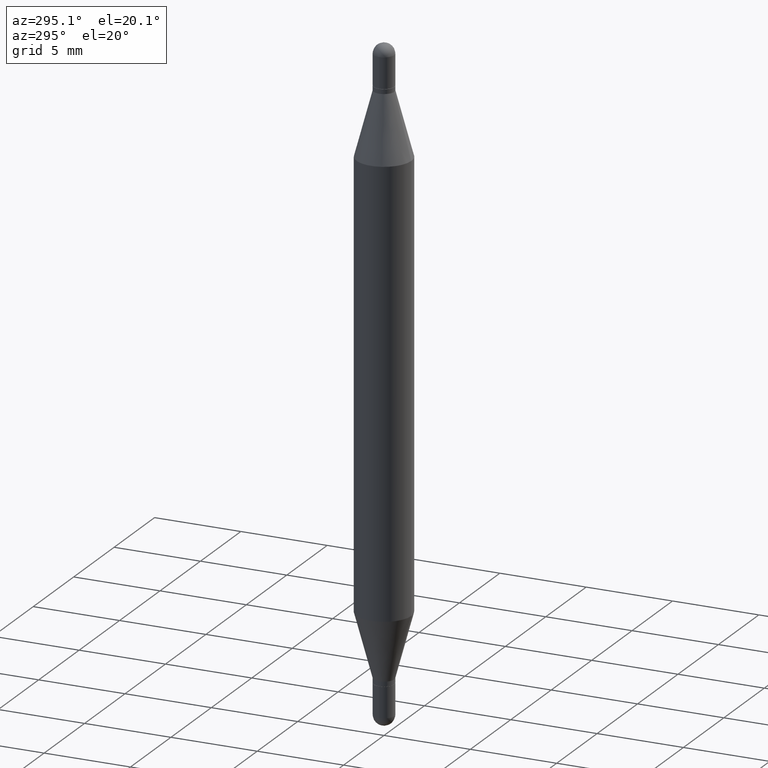
[diagram: clean part render]
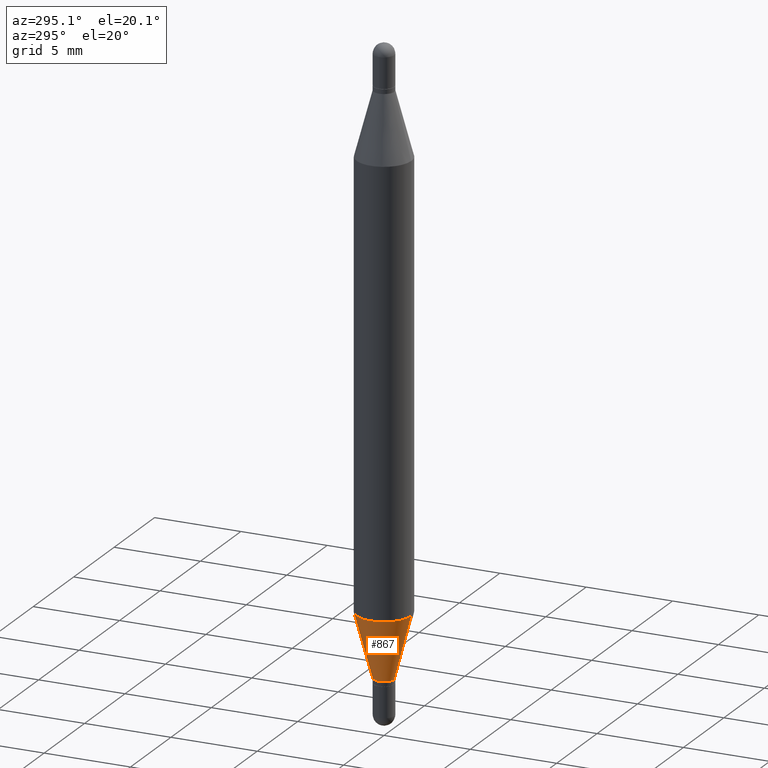
[diagram: same view with one face highlighted and labeled with its STEP entity id]
A machine part, auxiliary view. The second image highlights one B-rep face of the part: STEP entity #867.
In plain terms, the highlighted conical surface has half-angle 15 deg.
Its self-contained STEP definition (entity closure, byte-faithful):
#77 = CIRCLE ( 'NONE', #686, 0.06250000000000000000 ) ;
#111 = AXIS2_PLACEMENT_3D ( 'NONE', #135, #821, #308 ) ;
#116 = ORIENTED_EDGE ( 'NONE', *, *, #382, .T. ) ;
#123 = CARTESIAN_POINT ( 'NONE',  ( -1.637504747917063431E-16, -0.02345000000000452625, -1.396000000000000352 ) ) ;
#135 = CARTESIAN_POINT ( 'NONE',  ( 3.414017849035659863E-29, -4.873902598362531542E-15, -1.396000000000000352 ) ) ;
#136 = CARTESIAN_POINT ( 'NONE',  ( 1.666222715357751368E-16, 0.02344999999999477711, -1.396000000000000352 ) ) ;
#181 = AXIS2_PLACEMENT_3D ( 'NONE', #1067, #901, #209 ) ;
#202 = DIRECTION ( 'NONE',  ( -2.445571525097176627E-29, 3.491334239514706873E-15, 1.000000000000000000 ) ) ;
#209 = DIRECTION ( 'NONE',  ( -6.982962677686265133E-15, -1.000000000000000000, 0.000000000000000000 ) ) ;
#212 = CARTESIAN_POINT ( 'NONE',  ( -4.364351673553610517E-16, -0.06250000000000435763, -1.250263415964434799 ) ) ;
#252 = VERTEX_POINT ( 'NONE', #348 ) ;
#271 = EDGE_LOOP ( 'NONE', ( #601, #484, #116, #1075 ) ) ;
#280 = CARTESIAN_POINT ( 'NONE',  ( -1.637504747917063431E-16, -0.02345000000000452625, -1.396000000000000352 ) ) ;
#291 = DIRECTION ( 'NONE',  ( -6.982962677686265922E-15, -1.000000000000000000, 4.370956789862821150E-15 ) ) ;
#308 = DIRECTION ( 'NONE',  ( -6.982962677686265133E-15, -1.000000000000000000, 0.000000000000000000 ) ) ;
#309 = VECTOR ( 'NONE', #693, 39.37007874015748854 ) ;
#330 = CIRCLE ( 'NONE', #181, 0.02344999999999965168 ) ;
#348 = CARTESIAN_POINT ( 'NONE',  ( 1.666222715357763448E-16, 0.02344999999999477711, -1.396000000000000352 ) ) ;
#363 = LINE ( 'NONE', #123, #309 ) ;
#371 = VECTOR ( 'NONE', #888, 39.37007874015748143 ) ;
#382 = EDGE_CURVE ( 'NONE', #803, #939, #363, .T. ) ;
#460 = LINE ( 'NONE', #136, #371 ) ;
#484 = ORIENTED_EDGE ( 'NONE', *, *, #529, .T. ) ;
#495 = EDGE_CURVE ( 'NONE', #252, #988, #460, .T. ) ;
#529 = EDGE_CURVE ( 'NONE', #252, #803, #330, .T. ) ;
#601 = ORIENTED_EDGE ( 'NONE', *, *, #495, .F. ) ;
#673 = CONICAL_SURFACE ( 'NONE', #111, 0.02344999999999965168, 0.2617993877991505736 ) ;
#686 = AXIS2_PLACEMENT_3D ( 'NONE', #1053, #202, #291 ) ;
#693 = DIRECTION ( 'NONE',  ( -1.807323732225332111E-15, -0.2588190451025184635, 0.9659258262890689783 ) ) ;
#765 = EDGE_CURVE ( 'NONE', #988, #939, #77, .T. ) ;
#803 = VERTEX_POINT ( 'NONE', #280 ) ;
#821 = DIRECTION ( 'NONE',  ( -2.445571525097176627E-29, 3.491334239514706873E-15, 1.000000000000000000 ) ) ;
#867 = ADVANCED_FACE ( 'NONE', ( #1101 ), #673, .T. ) ;
#888 = DIRECTION ( 'NONE',  ( 1.839019923739602287E-15, 0.2588190451025252359, 0.9659258262890670910 ) ) ;
#901 = DIRECTION ( 'NONE',  ( -2.445571525097176627E-29, 3.491334239514706873E-15, 1.000000000000000000 ) ) ;
#939 = VERTEX_POINT ( 'NONE', #212 ) ;
#988 = VERTEX_POINT ( 'NONE', #1002 ) ;
#1002 = CARTESIAN_POINT ( 'NONE',  ( 4.287811248607390637E-16, 0.06249999999999563544, -1.250263415964435243 ) ) ;
#1053 = CARTESIAN_POINT ( 'NONE',  ( 3.057608608953349206E-29, -4.365087472569250311E-15, -1.250263415964435021 ) ) ;
#1067 = CARTESIAN_POINT ( 'NONE',  ( 3.414017849035659863E-29, -4.873902598362531542E-15, -1.396000000000000352 ) ) ;
#1075 = ORIENTED_EDGE ( 'NONE', *, *, #765, .F. ) ;
#1101 = FACE_OUTER_BOUND ( 'NONE', #271, .T. ) ;